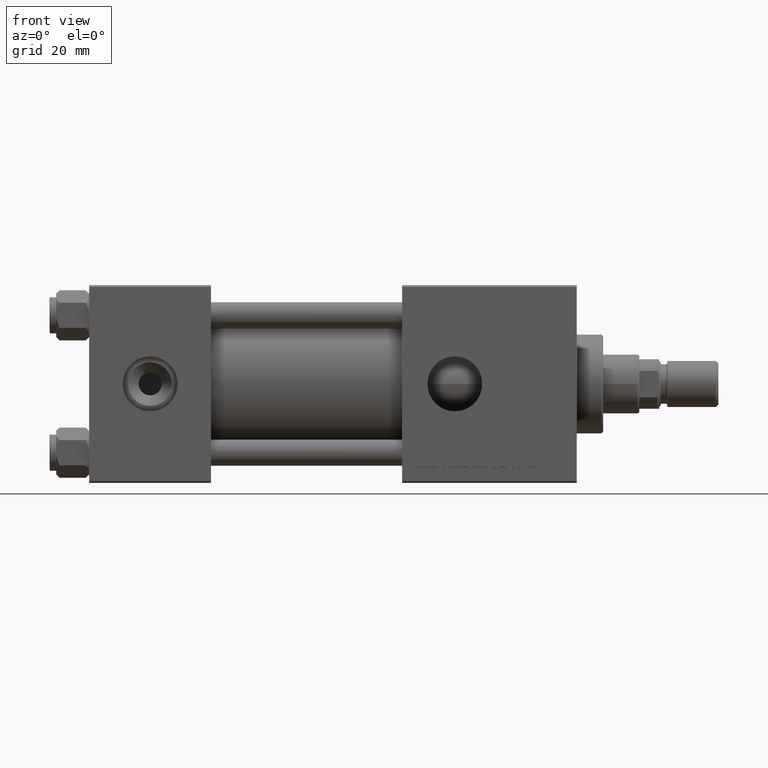
[diagram: clean part render]
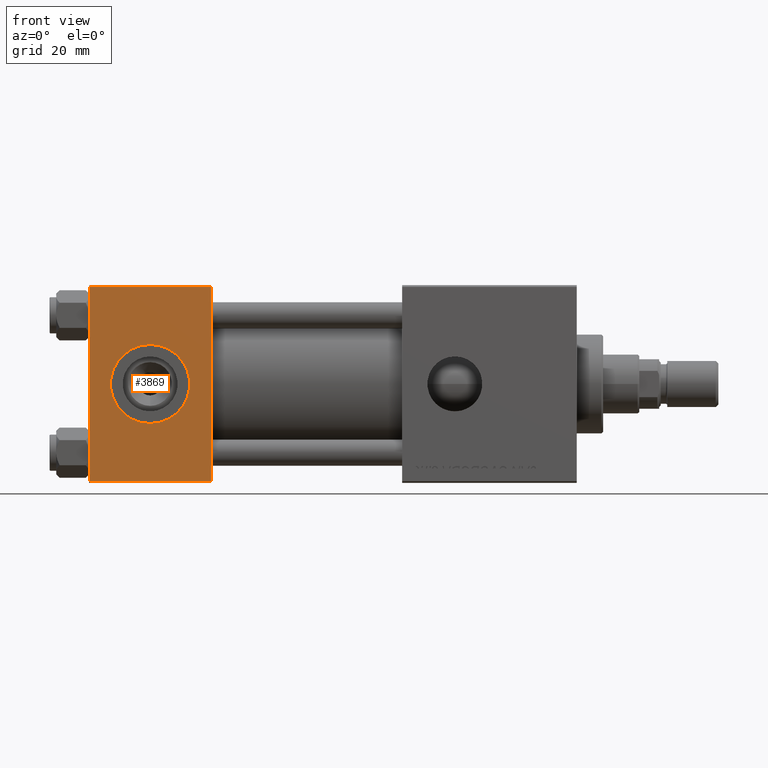
[diagram: same view with one face highlighted and labeled with its STEP entity id]
A machine part, front view. The second image highlights one B-rep face of the part: STEP entity #3869.
In plain terms, the highlighted planar face has unit normal (0, 1, 0).
Its self-contained STEP definition (entity closure, byte-faithful):
#605 = CARTESIAN_POINT ( 'NONE',  ( 37.00000000000000000, -30.00000000000000000, -29.50000000000001776 ) ) ;
#1294 = CARTESIAN_POINT ( 'NONE',  ( 0.000000000000000000, -30.00000000000000000, -29.50000000000001776 ) ) ;
#1368 = CARTESIAN_POINT ( 'NONE',  ( 37.00000000000000000, -30.00000000000000000, 29.99999999999999289 ) ) ;
#2545 = ORIENTED_EDGE ( 'NONE', *, *, #31173, .T. ) ;
#2777 = FACE_BOUND ( 'NONE', #9493, .T. ) ;
#3869 = ADVANCED_FACE ( 'NONE', ( #2777, #35825 ), #15045, .F. ) ;
#6433 = CARTESIAN_POINT ( 'NONE',  ( 0.000000000000000000, -30.00000000000000000, 29.49999999999999289 ) ) ;
#6850 = ORIENTED_EDGE ( 'NONE', *, *, #50337, .F. ) ;
#7567 = DIRECTION ( 'NONE',  ( -0.000000000000000000, 1.000000000000000000, 0.000000000000000000 ) ) ;
#8632 = DIRECTION ( 'NONE',  ( 0.000000000000000000, -1.000000000000000000, -8.673617379884036705E-17 ) ) ;
#8674 = CIRCLE ( 'NONE', #38461, 12.00000000000000178 ) ;
#9076 = LINE ( 'NONE', #17336, #39933 ) ;
#9493 = EDGE_LOOP ( 'NONE', ( #6850, #47048 ) ) ;
#11263 = CARTESIAN_POINT ( 'NONE',  ( 37.00000000000000000, -30.00000000000000000, -29.50000000000001776 ) ) ;
#12424 = DIRECTION ( 'NONE',  ( -1.000000000000000000, 0.000000000000000000, 0.000000000000000000 ) ) ;
#14517 = CARTESIAN_POINT ( 'NONE',  ( 18.50000000000000000, -30.00000000000000000, -12.00000000000000178 ) ) ;
#14847 = ORIENTED_EDGE ( 'NONE', *, *, #34153, .T. ) ;
#15045 = PLANE ( 'NONE',  #43955 ) ;
#16374 = AXIS2_PLACEMENT_3D ( 'NONE', #44908, #8632, #37155 ) ;
#16452 = VERTEX_POINT ( 'NONE', #1294 ) ;
#17336 = CARTESIAN_POINT ( 'NONE',  ( 0.000000000000000000, -30.00000000000000000, 29.99999999999999289 ) ) ;
#17898 = VECTOR ( 'NONE', #12424, 1000.000000000000000 ) ;
#18953 = CARTESIAN_POINT ( 'NONE',  ( 18.50000000000000000, -30.00000000000000000, 12.00000000000000178 ) ) ;
#18998 = LINE ( 'NONE', #11263, #29139 ) ;
#19305 = DIRECTION ( 'NONE',  ( 0.000000000000000000, -0.000000000000000000, 1.000000000000000000 ) ) ;
#21463 = LINE ( 'NONE', #49487, #17898 ) ;
#24250 = EDGE_CURVE ( 'NONE', #29363, #47972, #37632, .T. ) ;
#25289 = VECTOR ( 'NONE', #33632, 1000.000000000000000 ) ;
#26069 = ORIENTED_EDGE ( 'NONE', *, *, #50991, .T. ) ;
#26115 = DIRECTION ( 'NONE',  ( 0.000000000000000000, 0.000000000000000000, -1.000000000000000000 ) ) ;
#29139 = VECTOR ( 'NONE', #31002, 1000.000000000000000 ) ;
#29159 = EDGE_LOOP ( 'NONE', ( #2545, #26069, #40176, #14847 ) ) ;
#29363 = VERTEX_POINT ( 'NONE', #52459 ) ;
#31002 = DIRECTION ( 'NONE',  ( 1.000000000000000000, 0.000000000000000000, 0.000000000000000000 ) ) ;
#31173 = EDGE_CURVE ( 'NONE', #31781, #16452, #9076, .T. ) ;
#31189 = DIRECTION ( 'NONE',  ( 0.000000000000000000, -1.000000000000000000, -8.673617379884036705E-17 ) ) ;
#31440 = VERTEX_POINT ( 'NONE', #14517 ) ;
#31781 = VERTEX_POINT ( 'NONE', #6433 ) ;
#33372 = VERTEX_POINT ( 'NONE', #18953 ) ;
#33632 = DIRECTION ( 'NONE',  ( 0.000000000000000000, 0.000000000000000000, -1.000000000000000000 ) ) ;
#34153 = EDGE_CURVE ( 'NONE', #29363, #31781, #21463, .T. ) ;
#34237 = CIRCLE ( 'NONE', #16374, 12.00000000000000178 ) ;
#35825 = FACE_OUTER_BOUND ( 'NONE', #29159, .T. ) ;
#37155 = DIRECTION ( 'NONE',  ( 0.000000000000000000, 0.000000000000000000, -1.000000000000000000 ) ) ;
#37632 = LINE ( 'NONE', #1368, #25289 ) ;
#38461 = AXIS2_PLACEMENT_3D ( 'NONE', #44255, #31189, #52001 ) ;
#39347 = EDGE_CURVE ( 'NONE', #33372, #31440, #34237, .T. ) ;
#39933 = VECTOR ( 'NONE', #26115, 1000.000000000000000 ) ;
#40176 = ORIENTED_EDGE ( 'NONE', *, *, #24250, .F. ) ;
#43955 = AXIS2_PLACEMENT_3D ( 'NONE', #47572, #7567, #19305 ) ;
#44255 = CARTESIAN_POINT ( 'NONE',  ( 18.50000000000000000, -30.00000000000000000, 0.000000000000000000 ) ) ;
#44908 = CARTESIAN_POINT ( 'NONE',  ( 18.50000000000000000, -30.00000000000000000, 0.000000000000000000 ) ) ;
#47048 = ORIENTED_EDGE ( 'NONE', *, *, #39347, .F. ) ;
#47572 = CARTESIAN_POINT ( 'NONE',  ( 37.00000000000000000, -30.00000000000000000, 29.99999999999999289 ) ) ;
#47972 = VERTEX_POINT ( 'NONE', #605 ) ;
#49487 = CARTESIAN_POINT ( 'NONE',  ( 37.00000000000000000, -30.00000000000000000, 29.49999999999999289 ) ) ;
#50337 = EDGE_CURVE ( 'NONE', #31440, #33372, #8674, .T. ) ;
#50991 = EDGE_CURVE ( 'NONE', #16452, #47972, #18998, .T. ) ;
#52001 = DIRECTION ( 'NONE',  ( 0.000000000000000000, 0.000000000000000000, -1.000000000000000000 ) ) ;
#52459 = CARTESIAN_POINT ( 'NONE',  ( 37.00000000000000000, -30.00000000000000000, 29.49999999999999289 ) ) ;